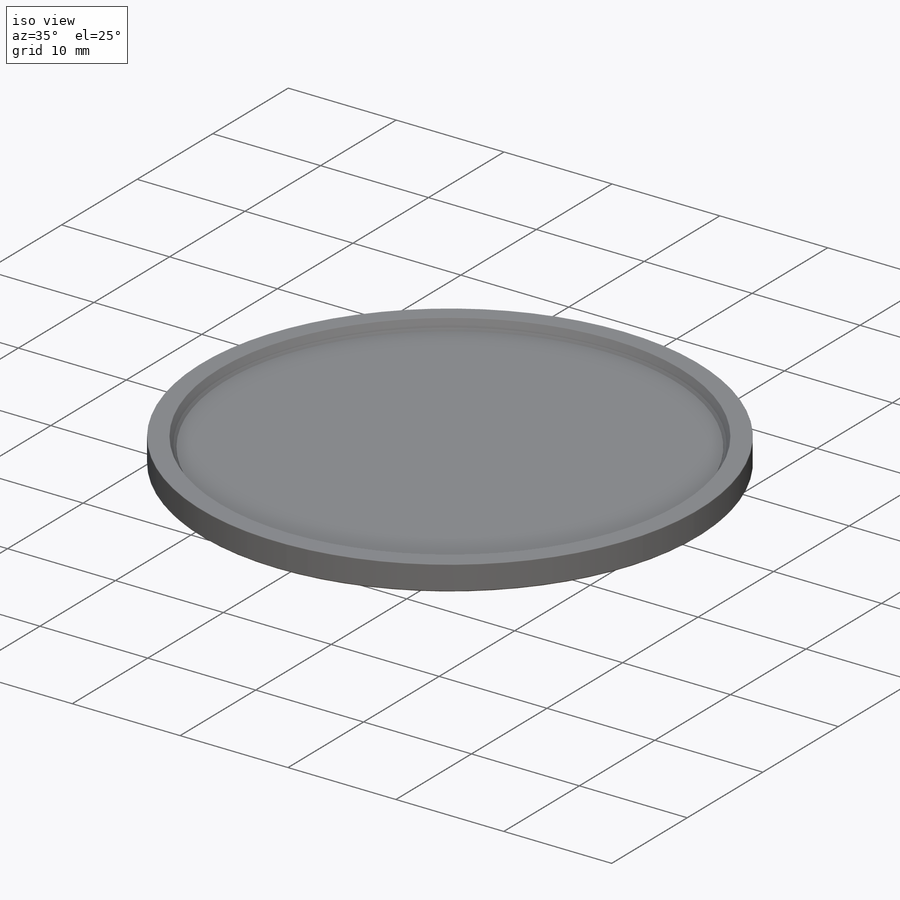
[diagram: iso view]
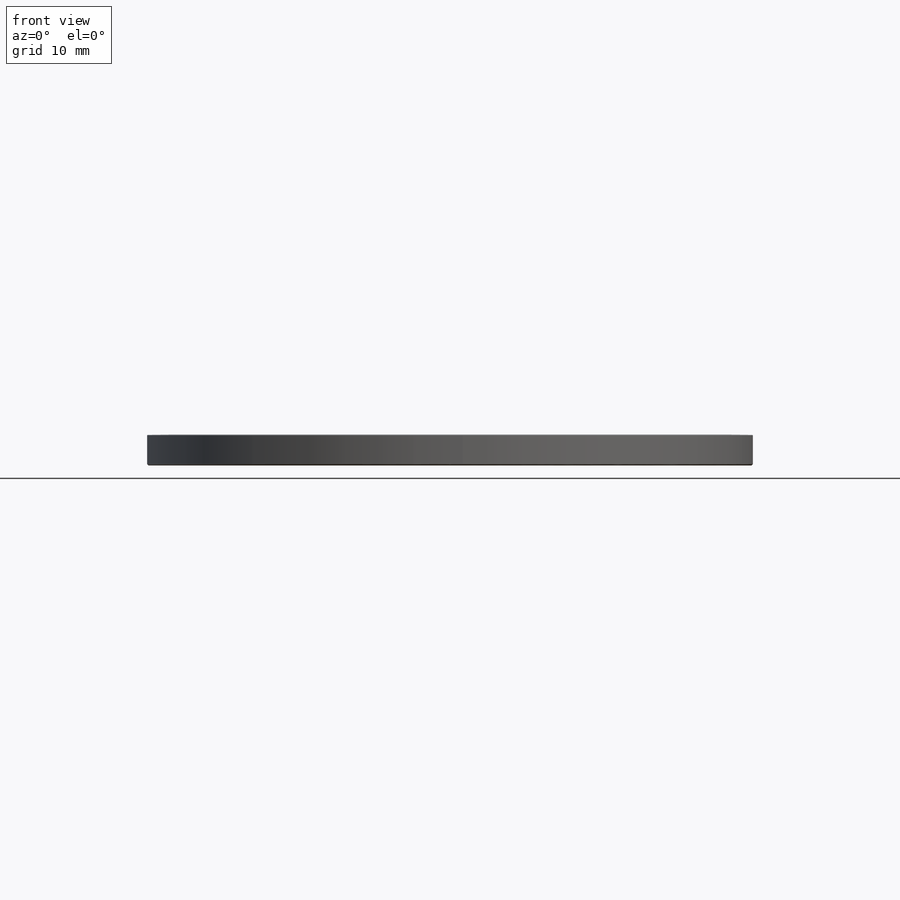
[diagram: front view]
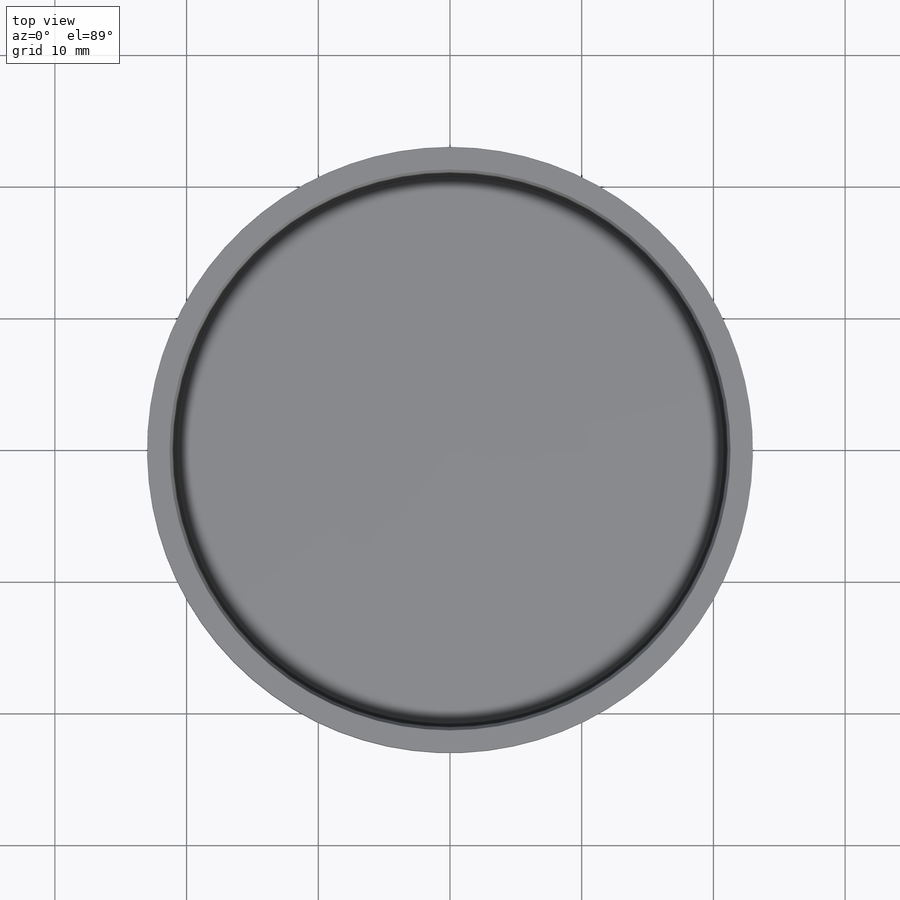
[diagram: top view]
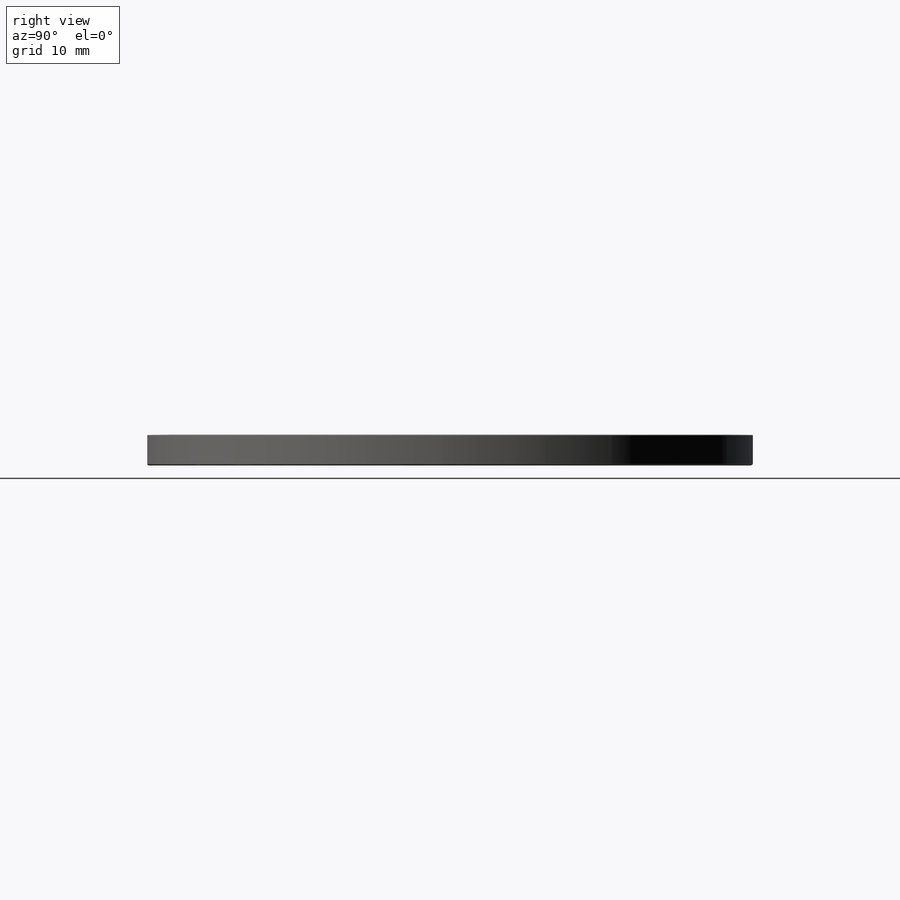
[diagram: right view]
SOLIDWORKS PART (.sldprt)
format: sldprt  version: not decoded by parser v0  size: 11,295,232 bytes
history: native  units: mm
features: sketch x72, fillet x46, cut_extrude x24, extrude x20, plane x18, revolve x7, chamfer x4, pattern_circular x3, surface_op x3, material x1, boolean_combine x1 (+16 scaffold rows collapsed; 5 parser-record rows omitted)
feature tree (220):
  scaffold x16  (default folders/planes/origin — collapsed)
  material  "Material <not specified>"
  plane  "mid"  Offset=1.8mm
  plane  "base"  Offset=5.3mm
  sketch  "Sketch1"  dims[D1=42.0mm]
  parser-record x5  (decoder bookkeeping rows leaked as tree rows — omitted from the tree; the rows remain in map.json)
  sketch  "Sketch2"  dims[c1.D6=3.5mm c1.D1=0.15mm c1.D3=1.5mm c1.D4=5.0mm c1.D2=2.0mm c2.D2=45.0deg c2.D4=0.5mm c2.D5=3.5mm c3.D4=3.0mm c3.D5=0.4mm c3.D7=20.0mm c3.D8=4.5mm c3.D9=1.5mm c3.D2=1.0mm]
  revolve  "Revolve1"  Angle=360deg
  sketch  "Sketch3"  dims[c1.D3=~396.737358mm c1.D5=~396.737358mm c2.D3=~1103.204337mm c2.D1=0.2mm c2.D2=0.5mm c3.D3=2.8mm c4.D3=~179.454365deg c5.D3=0.1mm c5.D4=22.5mm c5.D5=0.3mm c5.D1=0.3mm c5.D6=0.1mm c5.D7=11.9mm c5.D2=0.1mm c6.D3=0.6mm c6.D5=23.0mm c6.D4=2.0mm c7.D3=0.6mm c7.D6=0.1mm c7.D8=0.5mm c7.D2=0.05mm]
  revolve  "Revolve2"  Angle=360deg
  sketch  "Sketch4"  dims[c1.D3=2.6mm c1.D2=2000.15mm c1.D4=2.0mm c1.D1=0.3mm c2.D2=13.0mm c2.D3=0.1mm c2.D4=3.0mm c2.D5=1.5mm c3.D3=1.0mm c3.D5=0.1mm c3.D4=1.4mm c4.D5=1.0mm c4.D1=0.05mm c4.D2=~0.401678mm c5.D2=120.0deg c5.D3=0.6mm c5.D4=0.05mm c6.D2=0.05mm c6.D1=0.0mm c7.D2=0.0mm]
  revolve  "Revolve3"  Angle=360deg
  sketch  "Sketch102"  dims[D1=17.5mm]
  sketch  "Sketch6"  dims[c1.D1=16.0mm c1.D2=19.4mm c2.D1=17.5mm c2.D3=~2.197533mm c2.D2=19.5mm c3.D3=2.2mm c3.D2=4.1mm c4.D3=~2.638798mm c4.D4=~2.507106mm c4.D1=13.0mm c5.D3=~3.773942mm c6.D3=30.0deg c6.D4=~3.256932mm c7.D4=15.0deg c7.D5=4.0mm c8.D5=45.0deg c8.D6=~3.130586mm c9.D6=60.0deg c9.D7=4.0mm c10.D7=75.0deg c10.D8=4.0mm c11.D8=90.0deg c11.D9=~3.98312mm c12.D9=15.0deg c12.D10=~3.945643mm c13.D10=~170.543568deg c14.D10=~3.945643mm c15.D10=30.0deg c15.D11=~3.857599mm c16.D11=45.0deg c16.D12=~3.674091mm c17.D12=60.0deg c17.D13=4.0mm c18.D13=75.0deg c18.D3=~3.981455mm c19.D3=14.0deg c20.D3=0.6mm c20.D2=0.6mm c21.D3=0.6mm c21.D4=0.6mm c21.D1=~17.350285mm c22.D1=82.5deg]
  cut_extrude  "Cut-Extrude2"  [1 undecoded]
  fillet  "Fillet12"  Radius=0.2mm
  pattern_circular  "CirPattern2"  Count=12 Angle=165deg
  sketch  "Sketch22"  dims[D1=0.0mm]
  extrude  "Boss-Extrude6"  [1 undecoded]
  sketch  "Sketch104"
  cut_extrude  "Cut-Extrude34"  [1 undecoded]
  sketch  "Sketch11"  dims[c1.D1=12.3mm c1.D2=1.25mm c2.D1=2.2mm c2.D2=13.55mm c2.D3=~12.647083mm c3.D3=17.0deg c4.D3=0.6mm]
  cut_extrude  "Cut-Extrude8"  [1 undecoded]
  fillet  "Fillet13"  Radius=0.1mm
  pattern_circular  "CirPattern1"  Count=12 Angle=30deg
  plane  "Plane3"  Offset=0.325mm
  sketch  "Sketch7"  dims[c1.D1=~16.99683mm c1.D2=16.4mm c2.D1=~2.029183mm c3.D1=165.0deg]
  extrude  "Boss-Extrude4"  Depth=0.025mm
  sketch  "Sketch12"  dims[c1.D1=12.75mm c1.D2=13.25mm c2.D2=10.0deg c2.D3=~13.514791mm c3.D3=10.0deg c3.D1=0.35mm c4.D3=22.5mm c5.D3=10.0deg]
  extrude  "Boss-Extrude5"  [1 undecoded]
  plane  "Plane1"  Offset=0.7mm
  plane  "Plane4"  Offset=0.05mm
  sketch  "Sketch13"  dims[c1.D1=~31.380653mm c1.D2=19.0mm c1.D3=4.0mm c1.D4=1.5mm c2.D1=~30.324533mm c2.D2=19.55mm c3.D1=0.15mm c3.D2=0.15mm c3.D5=19.15mm c4.D5=55.0deg c4.D6=~38.262504mm c5.D6=~0.899576deg c5.D5=19.15mm c6.D5=65.0deg c6.D6=2.2mm c6.D7=1.2mm c6.D1=0.2mm c6.D2=0.2mm]
  extrude  "Boss-Extrude1"  Depth=0.65mm
  sketch  "Sketch14"  dims[c1.D1=~31.075893mm c1.D2=~24.585151mm c1.D4=0.7mm c1.D5=3.2mm c2.D1=~30.129694mm c2.D2=~21.554118mm c3.D1=0.15mm c3.D2=0.15mm c3.D3=12.45mm c4.D3=~194.744468deg c5.D3=12.45mm c6.D3=60.0deg c6.D5=0.1mm c6.D6=1.7mm c6.D7=1.0mm c6.D1=0.15mm c6.D2=0.6mm]
  extrude  "Boss-Extrude2"  Depth=0.3mm
  sketch  "Sketch23"  dims[c1.D2=~37.293222mm c1.D3=35.0mm c1.D6=3.0mm c1.D7=1.0mm c1.D8=0.6mm c1.D9=31.0mm c1.D10=31.0mm c2.D7=1.0mm c2.D6=1.3mm c2.D3=35.5mm c2.D11=31.5mm c2.D8=0.4mm c2.D9=35.3mm c3.D6=1.0mm c3.D2=0.8mm c3.D4=22.5mm c4.D4=5.0deg c4.D5=33.0mm c4.D10=0.8mm c4.D8=1.0mm c4.D9=1.5mm c5.D9=175.0deg c5.D4=20.7mm c6.D4=5.0deg c6.D3=3.0mm c6.D9=4.6mm c6.D6=1.0mm c6.D1=0.0mm]
  extrude  "Boss-Extrude7"  [1 undecoded]
  sketch  "Sketch25"  dims[c1.D1=4.0mm c1.D2=2.2mm c1.D3=~22.018935mm c1.D4=~31.610697mm c1.D7=41.0mm c1.D9=0.7mm c2.D2=1.5mm c2.D1=1.5mm c2.D3=0.8mm c2.D4=0.8mm c2.D5=~24.144917mm c3.D5=20.0deg c3.D6=5.0mm c3.D8=~1.266434mm c4.D8=~1.35247deg c5.D8=1.0mm c5.D1=1.0mm]
  extrude  "Boss-Extrude8"  Depth=0.05mm
  sketch  "Sketch76"  dims[c1.D1=~21.31353mm c1.D2=~22.31353mm c2.D1=0.5mm c2.D2=0.1mm]
  extrude  "Boss-Extrude17"  [1 undecoded]
  sketch  "Sketch49"  dims[D1=0.4mm]
  cut_extrude  "Cut-Extrude16"  Depth=0.2mm
  sketch  "Sketch72"  dims[c1.D1=~4.788217mm c1.D3=~2.548619mm c2.D1=15.35mm c2.D2=19.65mm c2.D3=~29.678802mm c2.D4=~24.252819mm c3.D1=0.1mm c3.D2=4.3mm c4.D2=90.0deg c4.D3=0.1mm c4.D1=0.1mm c5.D2=0.1mm c5.D3=0.1mm c5.D4=0.1mm]
  cut_extrude  "Cut-Extrude20"  Depth=0.1mm
  sketch  "Sketch73"  dims[D1=0.0mm D2=0.0mm]
  cut_extrude  "Cut-Extrude21"  Depth=0.1mm
  sketch  "Sketch74"  dims[c1.D1=~38.377448mm c1.D2=~31.432427mm c1.D3=~25.234605mm c1.D4=~28.647541mm c2.D1=0.05mm c2.D2=0.05mm c2.D3=0.05mm c2.D4=0.05mm]
  extrude  "Boss-Extrude15"  Depth=0.025mm
  sketch  "Sketch75"  dims[D1=0.0mm D2=0.0mm]
  extrude  "Boss-Extrude16"  Depth=0.025mm
  sketch  "Sketch50"  dims[D1=0.025mm D2=0.025mm D3=0.07mm D4=0.03mm]
  revolve  "Revolve6"  Angle=360deg
  fillet  "Fillet39"  Radius=0.05mm
  sketch  "Sketch79"  dims[D1=18.0mm]
  cut_extrude  "Cut-Extrude22"  Depth=0.05mm
  sketch  "Sketch30"  dims[D1=34.0mm]
  sketch  "Sketch52"  dims[c1.D1=0.1mm c1.D2=15.0mm c1.D3=~1.530541mm c2.D3=60.0deg c2.D4=1.9mm]
  revolve  "Revolve7"  Angle=360deg
  sketch  "Sketch31"  dims[c1.D4=~1102.831691mm c1.D1=0.5mm c1.D2=17.0mm c1.D3=0.05mm c2.D4=0.3mm c2.D2=16.0mm c2.D1=18.05mm c3.D4=0.5mm c3.D2=0.05mm]
  revolve  "Revolve5"  Angle=360deg
  plane  "Plane5"  Offset=4mm
  plane  "Plane6"  Offset=23.1mm
  sketch  "Sketch34"  dims[D1=3.4mm]
  cut_extrude  "Cut-Extrude9"  Depth=26mm
  sketch  "Sketch47"  dims[D1=1.0mm]
  cut_extrude  "Cut-Extrude15"  [1 undecoded]
  sketch  "Sketch35"  dims[D1=0.1mm]
  extrude  "Boss-Extrude11"  Depth=4mm
  sketch  "Sketch38"  dims[D1=2.0mm]
  extrude  "Boss-Extrude12"  Depth=3mm
  sketch  "Sketch41"  dims[c1.D1=12.0mm c1.D3=12.0mm c1.D2=2.5mm c2.D1=360.0deg]
  fillet  "Fillet37"  Radius=0.1mm
  sketch  "Sketch39"  dims[D1=0.3mm]
  cut_extrude  "Cut-Extrude10"  Depth=0.3mm
  fillet  "Fillet63"  Radius=0.05mm
  fillet  "Fillet38"  Radius=0.05mm
  pattern_circular  "CirPattern3"  Count=40 Angle=360deg
  fillet  "Fillet64"  Radius=0.1mm
  plane  "Plane7"  Offset=10mm
  sketch  "Sketch46"  dims[D1=26.0mm]
  cut_extrude  "Cut-Extrude14"  [1 undecoded]
  sketch  "Sketch54"  dims[c1.D1=~41.80405mm c1.D2=~31.54976mm c2.D1=1.5mm c2.D2=1.0mm c2.D3=23.0mm]
  cut_extrude  "Cut-Extrude19"  Depth=1.6mm
  plane  "Plane10"  Offset=0.55mm
  sketch  "Sketch55"  dims[c1.D1=~41.612096mm c1.D2=~35.188486mm c2.D1=0.05mm c2.D2=0.05mm c2.D3=0.05mm c2.D4=~24.900286mm c3.D4=~179.725153deg c4.D4=0.1mm]
  extrude  "Boss-Extrude13"  Depth=0.05mm
  sketch  "Sketch56"  dims[c1.D1=51.0mm c1.D2=76.0mm c1.D3=31.0mm c2.D2=38.0mm c2.D4=0.9mm]
  surface_op  "Surface-Extrude1"
  sketch  "Sketch57"  dims[D1=1.0mm]
  sketch  "Sketch58"  dims[c1.D1=~36.756108mm c2.D1=8.0deg c2.D2=25.0mm]
  plane  "Plane8"
  sketch  "Sketch61"  dims[D1=10.0mm D2=10.0mm]
  sketch  "Sketch63"  dims[c1.D1=1.0mm c2.D1=1.2mm c2.D2=1.2mm c3.D1=2.5mm]
  sketch  "Sketch65"  dims[c1.D2=~34.736969mm c2.D2=35.0deg c2.D1=0.2mm c2.D3=1.0mm]
  sketch  "Sketch64"  dims[c1.D1=13.5mm c2.D1=2.5mm]
  plane  "Plane9"
  sketch  "Sketch66"  dims[D1=13.5mm]
  sketch  "Sketch67"  dims[D1=1.0mm D2=0.0mm]
  sketch  "Sketch68"  dims[c1.D1=1.0mm c2.D1=13.5mm]
  sketch  "Sketch84"  dims[c1.D1=~32.150089mm c2.D1=15.0deg c2.D2=~31.623889mm c3.D2=15.0deg c3.D3=~36.666477mm c4.D3=20.0deg c4.D1=13.0mm]
  plane  "Plane11"
  plane  "Plane12"
  plane  "Plane13"
  plane  "Plane16"
  plane  "Plane14"
  plane  "Plane15"
  sketch  "Sketch81"  dims[D1=4.0mm]
  extrude  "Boss-Extrude18"  Depth=0.7mm
  sketch  "Sketch82"  dims[c1.D3=1.5mm c1.D1=~4.464491mm c2.D1=90.0deg c3.D1=2.3mm c3.D2=1.5mm c3.D4=0.7mm c4.D1=3.0mm]
  revolve  "Revolve8"  Angle=360deg
  boolean_combine  "Combine1"
  sketch  "Sketch83"  dims[c1.D1=~4.928959mm c1.D2=4.5mm c2.D1=3.25mm c2.D3=3.25mm c3.D1=0.5mm c3.D3=3.5mm]
  cut_extrude  "Cut-Extrude23"  Depth=10mm
  sketch  "Sketch85"  dims[D1=6.5mm D2=4.5mm D3=3.5mm D4=~6.919445mm]
  cut_extrude  "Cut-Extrude24"  Depth=10mm
  sketch  "Sketch86"  dims[D1=3.25mm D2=2.25mm D3=3.5mm]
  cut_extrude  "Cut-Extrude25"  Depth=10mm
  sketch  "Sketch87"  dims[D1=6.5mm D2=4.5mm D3=3.5mm]
  cut_extrude  "Cut-Extrude26"  Depth=10mm
  sketch  "Sketch88"  dims[D1=6.5mm D2=4.5mm D3=3.5mm]
  cut_extrude  "Cut-Extrude27"  Depth=10mm
  sketch  "Sketch89"  dims[D1=0.0mm D2=0.8mm]
  extrude  "Boss-Extrude19"  [1 undecoded]
  sketch  "Sketch90"  dims[D1=0.0mm D2=0.8mm]
  extrude  "Boss-Extrude20"  Depth=0.5mm
  sketch  "Sketch91"  dims[D1=0.8mm D2=0.0mm]
  extrude  "Boss-Extrude21"  [1 undecoded]
  sketch  "Sketch92"  dims[D1=0.0mm D2=0.8mm]
  extrude  "Boss-Extrude22"  [1 undecoded]
  sketch  "Sketch93"  dims[D1=0.8mm D2=0.0mm]
  extrude  "Boss-Extrude23"  Depth=0mm
  sketch  "Sketch70"  dims[D1=0.0mm]
  surface_op  "Surface-Extend2"
  sketch  "Sketch71"
  surface_op  "Surface-Fill2"
  sketch  "Sketch96"  dims[D1=0.1mm]
  cut_extrude  "Cut-Extrude28"  Depth=10mm
  sketch  "Sketch97"  dims[D1=0.1mm]
  cut_extrude  "Cut-Extrude29"  Depth=10mm
  sketch  "Sketch98"  dims[D1=0.1mm]
  cut_extrude  "Cut-Extrude30"  Depth=10mm
  sketch  "Sketch99"  dims[D1=0.1mm]
  cut_extrude  "Cut-Extrude31"  Depth=10mm
  sketch  "Sketch100"  dims[D1=0.1mm]
  cut_extrude  "Cut-Extrude32"  Depth=10mm
  sketch  "Sketch101"  dims[D1=0.1mm]
  cut_extrude  "Cut-Extrude33"  Depth=10mm
  fillet  "Fillet23"  Radius=0.05mm
  fillet  "Fillet24"  Radius=0.05mm
  fillet  "Fillet42"  Radius=0.1mm
  fillet  "Fillet25"  Radius=0.05mm
  fillet  "Fillet65"  Radius=0.1mm
  fillet  "Fillet66"  Radius=0.05mm
  fillet  "Fillet43"  Radius=0.1mm
  fillet  "Fillet26"  Radius=0.05mm
  fillet  "Fillet44"  Radius=0.05mm
  fillet  "Fillet45"  Radius=0.05mm
  fillet  "Fillet46"  Radius=0.05mm
  fillet  "Fillet47"  Radius=0.3mm
  fillet  "Fillet48"  Radius=0.05mm
  chamfer  "Chamfer1"  Distance=0.1mm Angle=45deg
  chamfer  "Chamfer2"  Distance=0.1mm Angle=45deg
  chamfer  "Chamfer3"  Distance=0.15mm Angle=45deg
  fillet  "Fillet50"  Radius=0.05mm
  fillet  "Fillet51"  Radius=0.05mm
  fillet  "Fillet52"  Radius=0.05mm
  fillet  "Fillet53"  Radius=0.3mm
  fillet  "Fillet54"  Radius=0.3mm
  fillet  "Fillet56"  Radius=0.1mm
  fillet  "Fillet57"  Radius=0.1mm
  fillet  "Fillet58"  Radius=0.1mm
  fillet  "Fillet59"  Radius=0.05mm
  fillet  "Fillet55"  Radius=0.05mm
  fillet  "Fillet49"  Radius=0.05mm
  fillet  "Fillet60"  Radius=0.05mm
  fillet  "Fillet61"  Radius=0.05mm
  fillet  "Fillet62"  Radius=0.05mm
  fillet  "Fillet67"  Radius=0.7mm
  chamfer  "Chamfer4"  Distance=0.3mm Angle=45deg
  fillet  "Fillet68"  Radius=0.1mm
  fillet  "Fillet69"  Radius=0.1mm
  fillet  "Fillet70"  Radius=0.6mm
  fillet  "Fillet71"  Radius=0.1mm
  fillet  "Fillet72"  Radius=0.1mm
  fillet  "Fillet73"  Radius=0.6mm
  fillet  "Fillet74"  Radius=0.1mm
  fillet  "Fillet75"  Radius=0.1mm
  plane  "logo"  Offset=13mm
  sketch  "Sketch42"
  sketch  "Sketch43"  dims[c1.D12=1.05mm c1.D18=1.02mm c1.D20=1.06mm c1.D1=1.48mm c1.D2=1.48mm c1.D3=0.43mm c1.D4=0.43mm c1.D5=0.5mm c1.D6=0.5mm c1.D7=0.48mm c1.D8=2.12mm c1.D9=~2.018208mm c2.D9=77.0deg c2.D10=~0.426691mm c3.D10=77.0deg c3.D11=3.2mm c3.D12=0.63mm c3.D13=1.17mm c3.D14=0.6mm c3.D15=1.56mm c3.D16=1.2mm c3.D17=0.92mm c3.D18=2.2mm c3.D19=1.35mm]
  sketch  "Sketch106"  dims[D1=0.0mm]
  sketch  "Sketch107"  dims[c1.D3=35.9mm c1.D9=4.0mm c1.D12=2.25mm c1.D15=2.23mm c1.D19=1.466mm c1.D22=0.58mm c1.D24=0.29mm c1.D29=0.37mm c1.D1=0.2mm c1.D2=0.52mm c1.D4=0.34mm c1.D5=0.86mm c1.D6=0.68mm c1.D7=1.85mm c1.D8=0.85mm c1.D10=1.95mm c1.D11=1.03mm c1.D13=4.6mm c1.D14=3.1mm c1.D16=0.74mm c1.D17=4.93mm c1.D20=5.21mm c1.D21=3.31mm c1.D23=5.87mm c1.D25=6.03mm c1.D26=~1.084065mm c2.D26=43.5deg c2.D27=1.3mm c2.D28=0.6mm c2.D30=6.25mm c2.D18=0.6mm c2.D1=0.03mm]
  sketch  "Sketch108"  dims[D4=0.07mm D5=0.4mm D6=0.3mm D1=0.0mm D2=0.0mm D3=0.0mm]
  cut_extrude  "Cut-Extrude35"  Depth=0.05mm
  fillet  "Fillet76"  Radius=0.25mm
  fillet  "Fillet77"  Radius=0.1mm
  fillet  "Fillet78"  Radius=0.05mm
  sketch  "Sketch109"  dims[D1=0.01mm D2=0.01mm]
  extrude  "Boss-Extrude24"  Depth=0.01mm
decode coverage: 161 of 180 modeling features carry decoded parameters
note: ~ marks probable driven/reference dimensions
note: 12 parameter values undecoded
summary: no parameter record found for 12 features
note: suppression state not decoded; provenance and decode notes live in map.json
